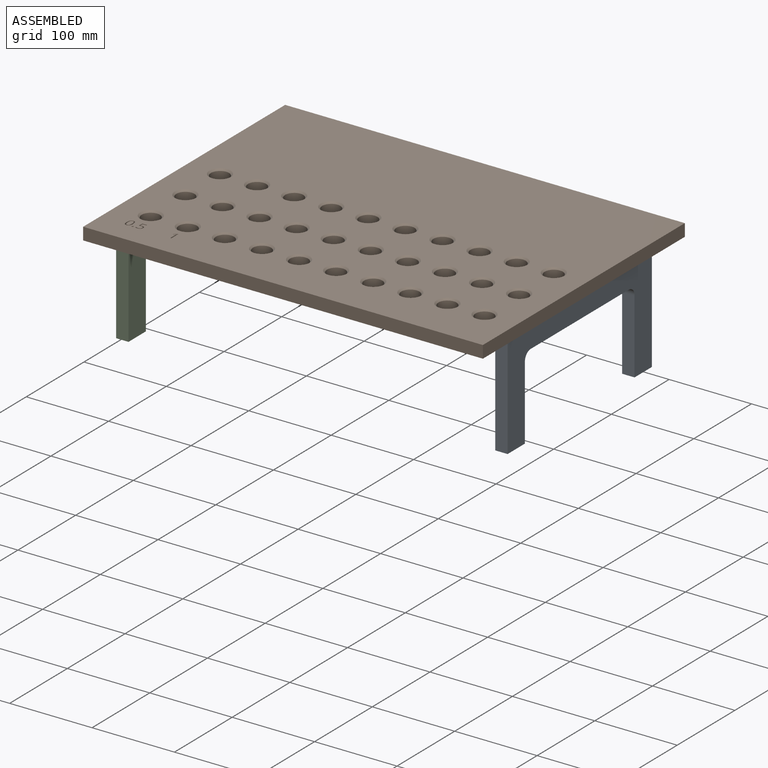
[diagram: assembled view]
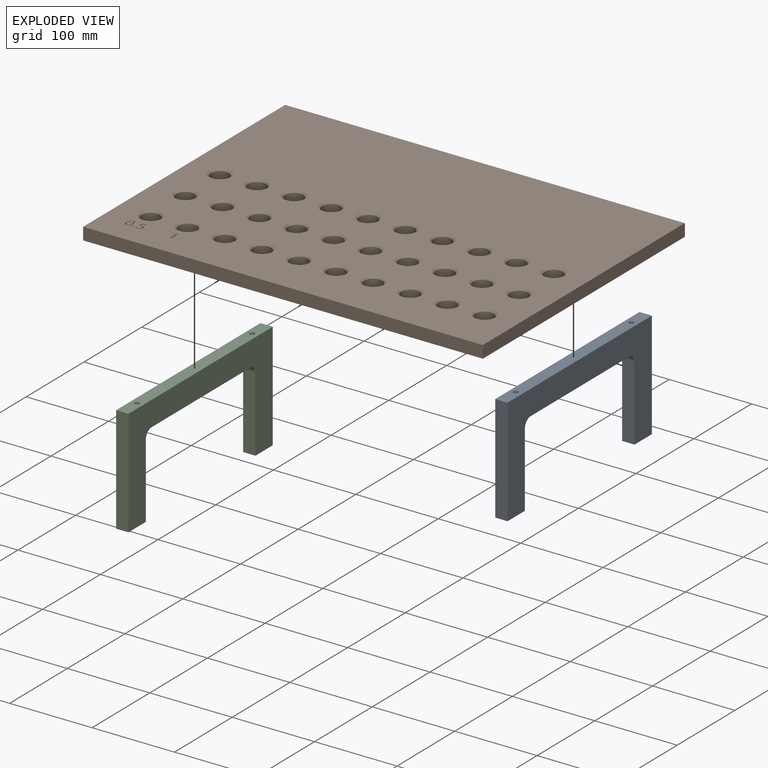
[diagram: exploded view]
GUIDED TOUR — MATED ASSEMBLY (Onshape document 2ca0723f34f644cde9012a4a, AutoMate assembly 2ca0723f34f644cde9012a4a_409998b27faf9a61b4676c2d_1e0f0a1a302fe3980934ada1_default)

This assembly has 3 components, labeled P0..P2 below (a component is one placed occurrence of a part; the same part can appear more than once), held together by 3 mates. A mate is a constraint between two components; its type names the relative motion it leaves free:
  CYLINDRICAL — leaves both rotation about and translation along the listed axis free,
  FASTENED — locks the two components together rigidly (no relative motion).
Axis/direction vectors are unit vectors and 'through' points are millimeter coordinates, both in the assembly's world frame.

MATES
  1. FASTENED "Fest 1": P2 <-> P1, direction (0.000, 0.000, 1.000) through (-230.00, -94.00, -170.50) mm
  2. CYLINDRICAL "Zylindrisch 1": P1 <-> P0, axis (0.000, 0.000, -1.000) through (230.00, 106.00, -167.00) mm
  3. FASTENED "Fest 2": P1 <-> P0, direction (0.000, 0.000, -1.000) through (230.00, 6.00, -170.50) mm

ASSEMBLY ORDER
  1. P1 — the base component [order verified]
  2. P2 [order verified]
  3. P0 [order verified]
Order-tag legend:
  [order verified] — this step's position reverses a verified removal order: the component was checked to insert without passing through the ones already placed.

Of the 3 components, 2 carry the full construction recipe — the FeatureScript program that regenerates the part's solid from scratch; the rest are supplied as boundary geometry only.
Each toured component is shown spotlighted twice — in the assembled view, then in the exploded view, where a leader line traces a displaced component back to its assembled socket (saturated green if recipe-attached, orange if geometry-only; every other component desaturated gray) — followed by its recipe or geometry summary and the mates that hold it.
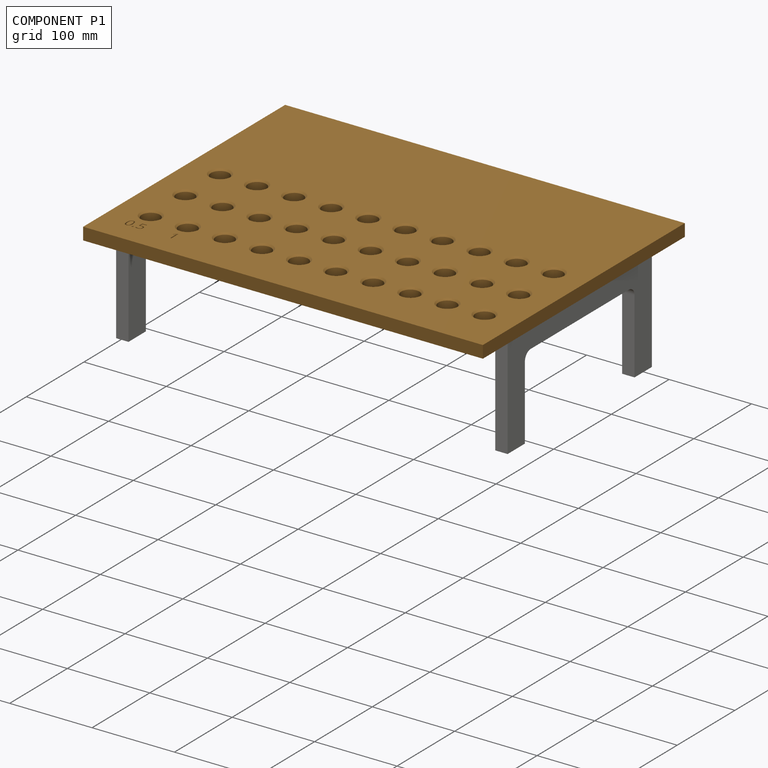
[diagram: component P1 — assembled]
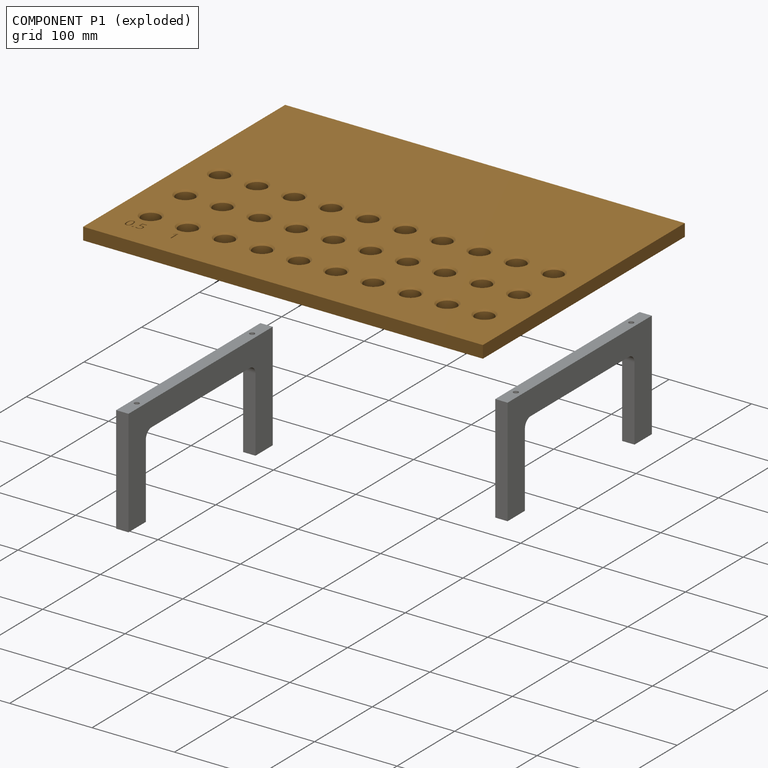
[diagram: component P1 — exploded]
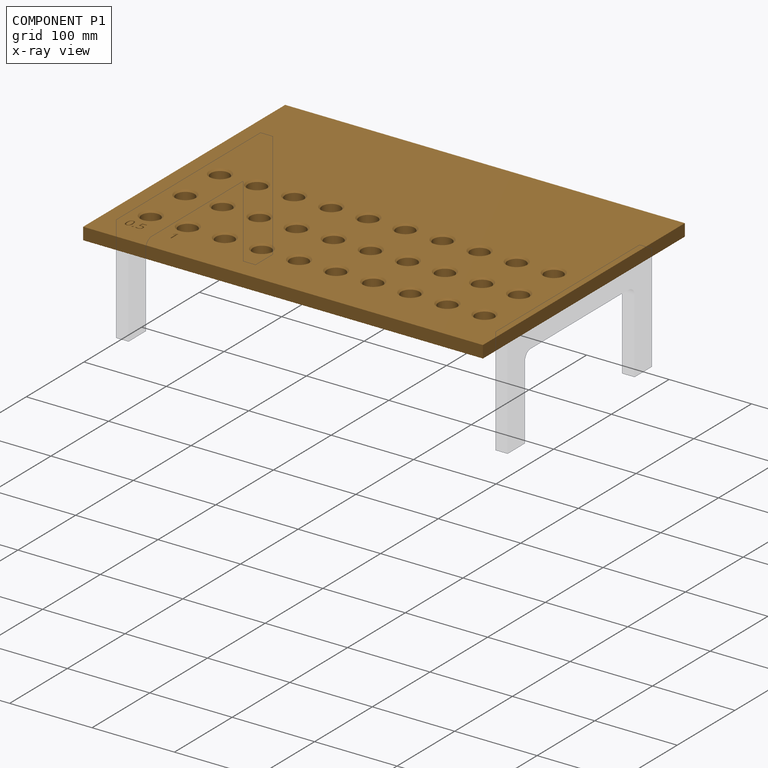
[diagram: component P1 — x-ray view]
COMPONENT P1 — geometry summary (no construction recipe available for this part):
  bounding box: 485.0 x 350.0 x 15.0 mm
  B-rep topology: 1 solid, 149 faces, 768 edges
  volume: 2328573 mm^3 (91% of its bounding box)
  symmetry: mirror-symmetric across its x mid-plane
Held by: FASTENED mate "Fest 1" to P2; CYLINDRICAL mate "Zylindrisch 1" to P0; FASTENED mate "Fest 2" to P0.
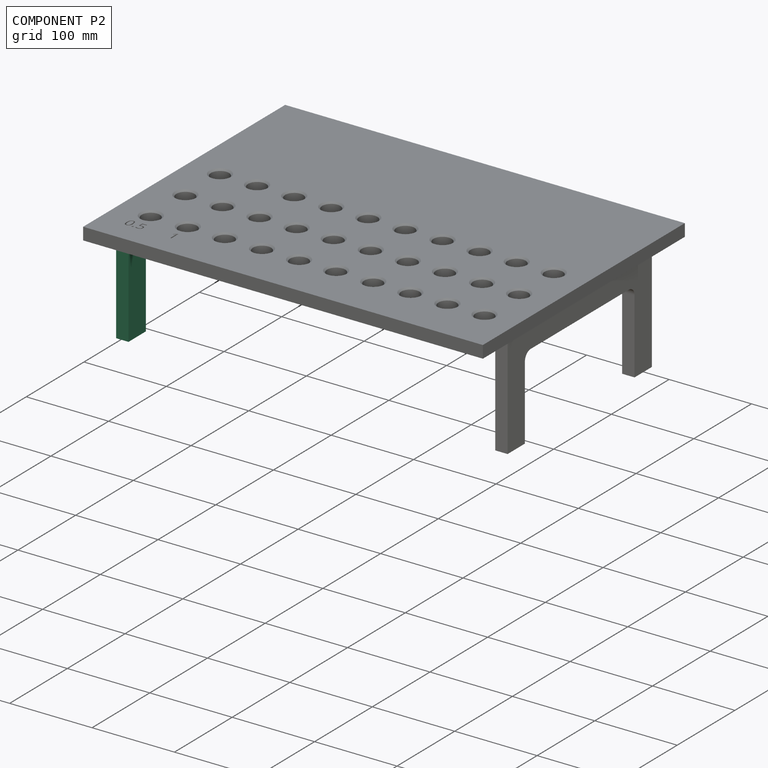
[diagram: component P2 — assembled]
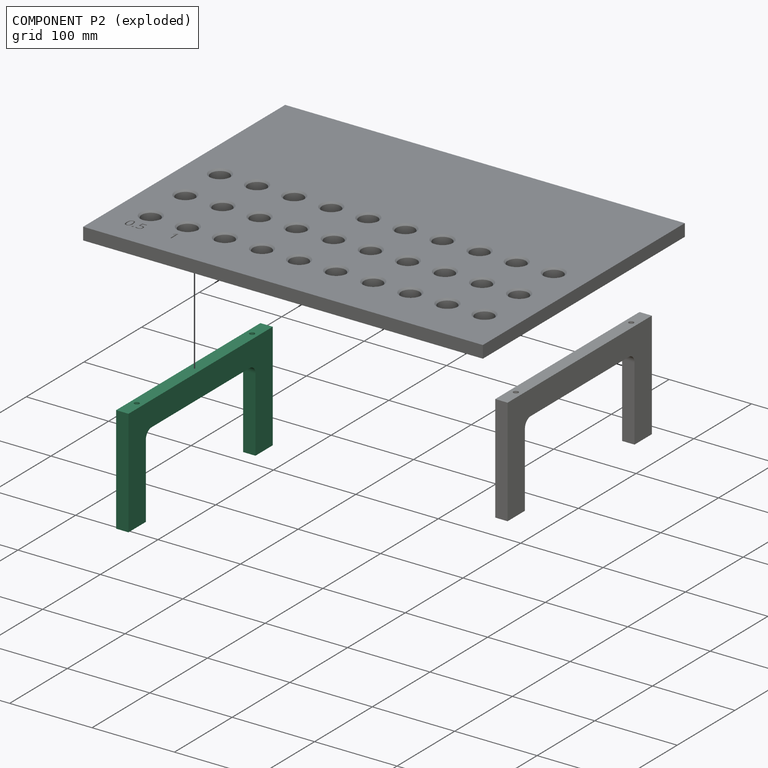
[diagram: component P2 — exploded]
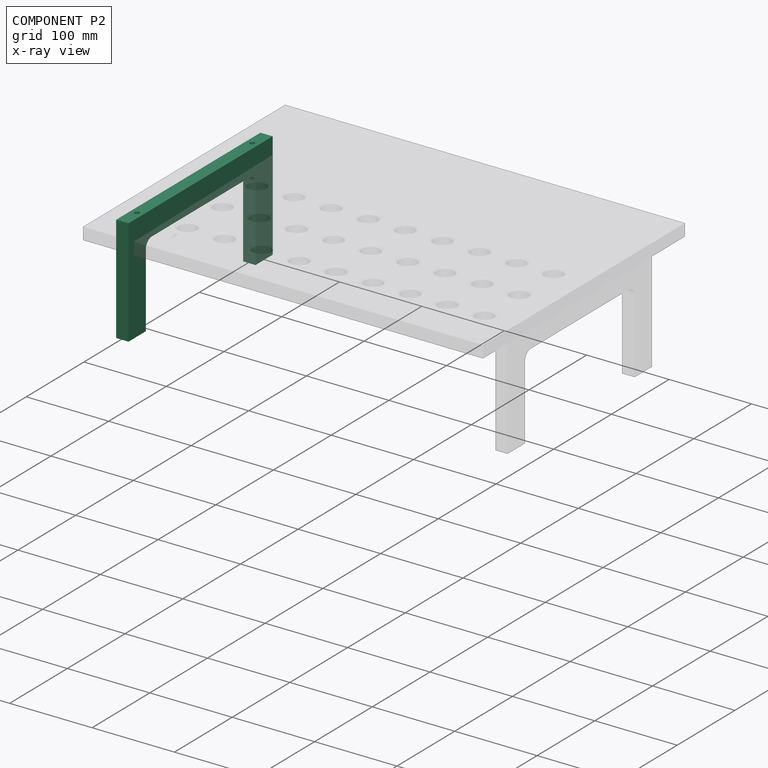
[diagram: component P2 — x-ray view]
COMPONENT P2 — same part as P0 (CADFS 00771292); its construction recipe is shown at P0.
Held by: FASTENED mate "Fest 1" to P1.
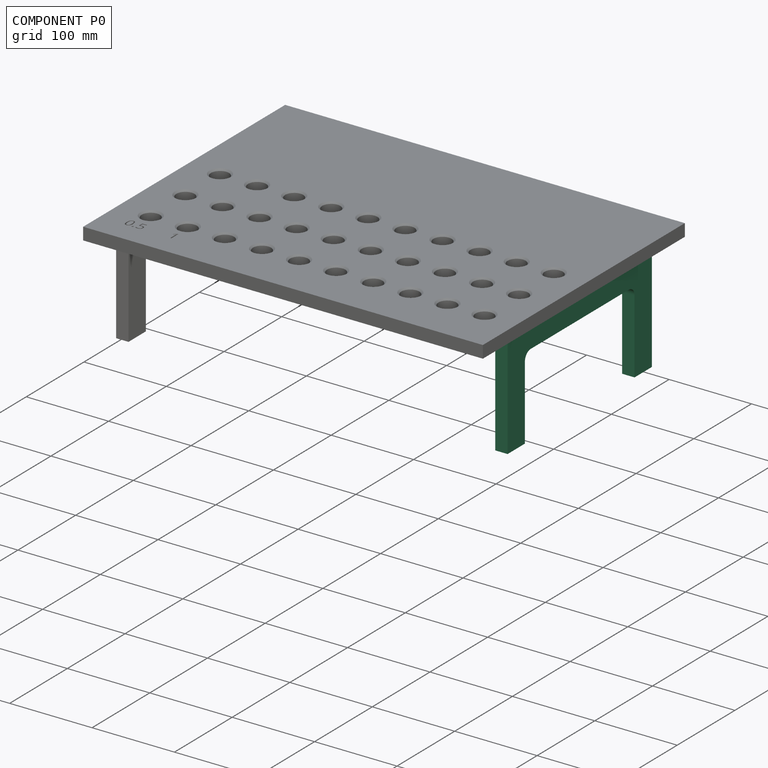
[diagram: component P0 — assembled]
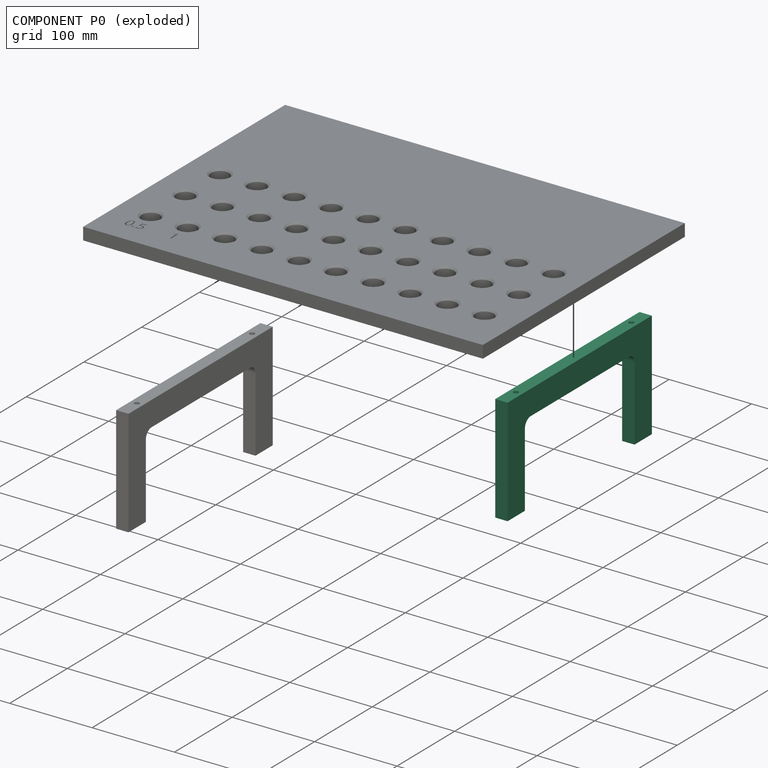
[diagram: component P0 — exploded]
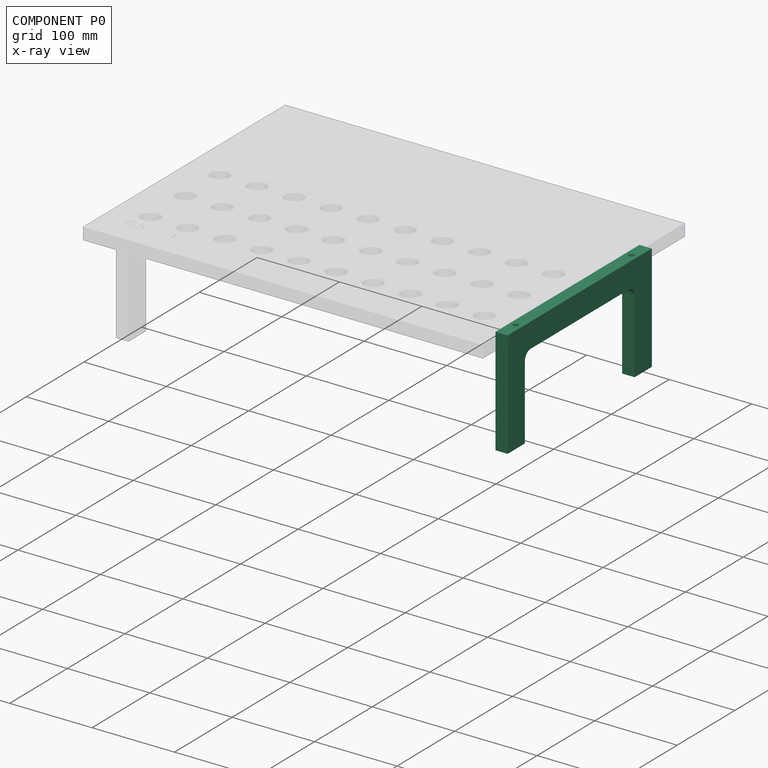
[diagram: component P0 — x-ray view]
COMPONENT P0 — recipe-attached (CADFS 00771292, mesh-verified: the recipe's output STEP matches this component's geometry to below the mesh-comparison resolution (tessellation chordal tolerance ~0.423 mm)).
Held by: CYLINDRICAL mate "Zylindrisch 1" to P1; FASTENED mate "Fest 2" to P1.
Construction recipe (FeatureScript — the CAD program that rebuilds this solid; sketch coordinates are in the units given by the * unit suffixes, e.g. mm):

FeatureScript 1511;
import(path : "onshape/std/geometry.fs", version : "1511.0");
import(path : "onshape/std/common.fs", version : "1511.0");
const mm = millimeter;
const VERTEX = EntityType.VERTEX;
const EDGE = EntityType.EDGE;
const FACE = EntityType.FACE;
const BODY = EntityType.BODY;
function v(x, y){return vector(x, y);}
function OD(order){return orderDisambiguation(order);}
function OSD(set){return originalSetDisambiguation(set);}
function TD(topology){return topologyDisambiguation(topology);}
function TDD(query){return trueDependencyDisambiguation(query);}
function sQuery(a, b, c) {return sketchEntityQuery(a, b, c);}

annotation { "Feature Type Name" : "Feature", "Feature Type Description" : "" }
export const myFeature = defineFeature(function(context is Context, id is Id, definition is map)
    precondition{}
    {
        {
            var Q0;
            Q0=qCreatedBy(makeId("Top.planeOp"),FACE);
            var sketch = newSketch(context, id + "F0", { "sketchPlane" : qUnion([Q0])});
            skLineSegment(sketch, "E0.bottom", {"start": v(125, -7.5) * mm, "end": v(-125, -7.5) * mm});
            skLineSegment(sketch, "E0.top", {"start": v(125, 7.5) * mm, "end": v(-125, 7.5) * mm});
            skLineSegment(sketch, "E0.left", {"start": v(125, -7.5) * mm, "end": v(125, 7.5) * mm});
            skLineSegment(sketch, "E0.right", {"start": v(-125, -7.5) * mm, "end": v(-125, 7.5) * mm});
            skPoint(sketch, "E0.middle", {"position": v(0, 0) * mm});
            skPoint(sketch, "E1", {"position": v(-100, 0) * mm});
            skPoint(sketch, "E2", {"position": v(100, 0) * mm});
            skSolve(sketch);
        }
        {
            var Q0;
            Q0=makeQuery(id+"F0.imprint","IMPRINT",FACE,{"disambiguationData":[TD([[makeQuery(id+"F0.imprint","IMPRINT",EDGE,{"derivedFrom":sQuery(id+"F0.wireOp",EDGE,"E0.bottom")}),-1.0]])]});
            extrude(context, id + "F1", {"entities" : qUnion([Q0]), "oppositeDirection" : true, "depth" : 130 * mm, "offsetDistance" : 25 * mm});
        }
        {
            var Q0;
            Q0=sQuery(id+"F0.wireOp",VERTEX,"E1");
            var Q1;
            Q1=sQuery(id+"F0.wireOp",VERTEX,"E2");
            var Q2;
            Q2=makeQuery(id+"F1.opExtrude","SWEPT_BODY",BODY,{"disambiguationData":[OSD([sQuery(id+"F0.wireOp",EDGE,"E0.bottom"),sQuery(id+"F0.wireOp",EDGE,"E0.top"),sQuery(id+"F0.wireOp",EDGE,"E0.left"),sQuery(id+"F0.wireOp",EDGE,"E0.right")])]});
            hole(context, id + "F2", {"style" : HoleStyle.SIMPLE, "endStyle" : HoleEndStyle.BLIND, "holeDiameter" : 6 * mm, "majorDiameter" : 5 * mm, "holeDepth" : 7 * mm, "isTappedThrough" : true, "tappedDepth" : 12 * mm, "tapClearance" : 3, "locations" : qUnion([Q0, Q1]), "scope" : qUnion([Q2])});
        }
        {
            var Q0;
            Q0=qCreatedBy(makeId("Front.planeOp"),FACE);
            var sketch = newSketch(context, id + "F3", { "sketchPlane" : qUnion([Q0])});
            skLineSegment(sketch, "E3.bottom", {"start": v(95, -177.2) * mm, "end": v(-95, -177.2) * mm});
            skLineSegment(sketch, "E3.top", {"start": v(85, -30) * mm, "end": v(-85, -30) * mm});
            skLineSegment(sketch, "E3.left", {"start": v(95, -177.2) * mm, "end": v(95, -40) * mm});
            skLineSegment(sketch, "E3.right", {"start": v(-95, -177.2) * mm, "end": v(-95, -40) * mm});
            skPoint(sketch, "E3.middle", {"position": v(0, -103.6) * mm});
            skPoint(sketch, "E4.visualSharp", {"position": v(-95, -30) * mm});
            skArc(sketch, "E4.filletArc", {"start": v(-85, -30) * mm, "mid": v(-92.07, -32.93) * mm, "end": v(-95, -40) * mm});
            skPoint(sketch, "E5.visualSharp", {"position": v(95, -30) * mm});
            skArc(sketch, "E5.filletArc", {"start": v(95, -40) * mm, "mid": v(92.07, -32.93) * mm, "end": v(85, -30) * mm});
            skSolve(sketch);
        }
        {
            var Q0;
            Q0=makeQuery(id+"F3.imprint","IMPRINT",FACE,{"disambiguationData":[TD([[makeQuery(id+"F3.imprint","IMPRINT",EDGE,{"derivedFrom":sQuery(id+"F3.wireOp",EDGE,"E3.bottom")}),-1.0]])]});
            extrude(context, id + "F4", {"entities" : qUnion([Q0]), "operationType" : NewBodyOperationType.REMOVE, "endBound" : BoundingType.SYMMETRIC, "oppositeDirection" : true, "depth" : 25 * mm, "offsetDistance" : 25 * mm});
        }
    });
PROVENANCE & LICENSES
Assembly (occurrences, transforms, mates, per-part STEP geometry): AutoMate dataset, Zenodo record 7776208, CC0.
Construction recipes: CADFS (HuggingFace VladPyatov/CADFS, CC-BY-4.0, layered over the ABC dataset), FeatureScript reconstruction programs keyed by ABC model id.
Join: ABC meta listings map ABC model id -> Onshape documentId; within a shared document, parts are matched by geometric signature (bounding-box dims + volume at 0.1% relative tolerance, exact B-rep face/solid counts).
Verification: 2 of this assembly's 3 components carry a recipe attachment, and every attachment is mesh-verified: the CADFS STEP and the AutoMate member STEP were compared as meshes in their shared local frame (symmetric sampled-point-to-mesh distance); worst across the 2 attachments: below the mesh-comparison resolution (tessellation chordal tolerance ~0.423 mm) on a 282 mm part.
Renders: orthographic iso camera (az 35 / el 25); the floor grid conveys scale (grid pitch printed in each image; no ruler). In the exploded view each component is displaced by its stored offset vector: the offsets alone carry the explosion direction (mate normal/axis signs are not orientation cues and do not encode it), and separation distances are assigned per mate-chain, not proportionally to assembly-order depth.
